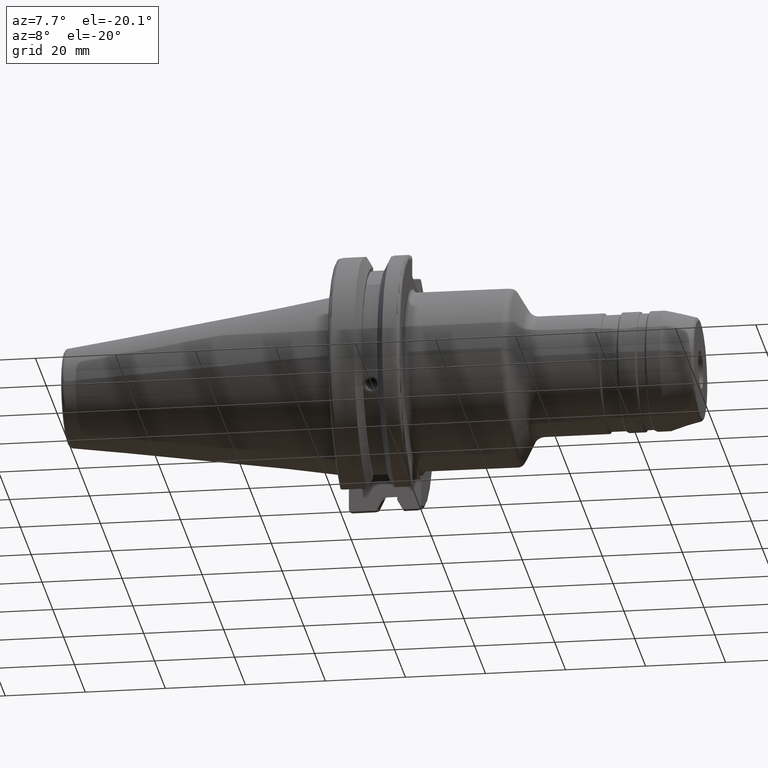
[diagram: clean part render]
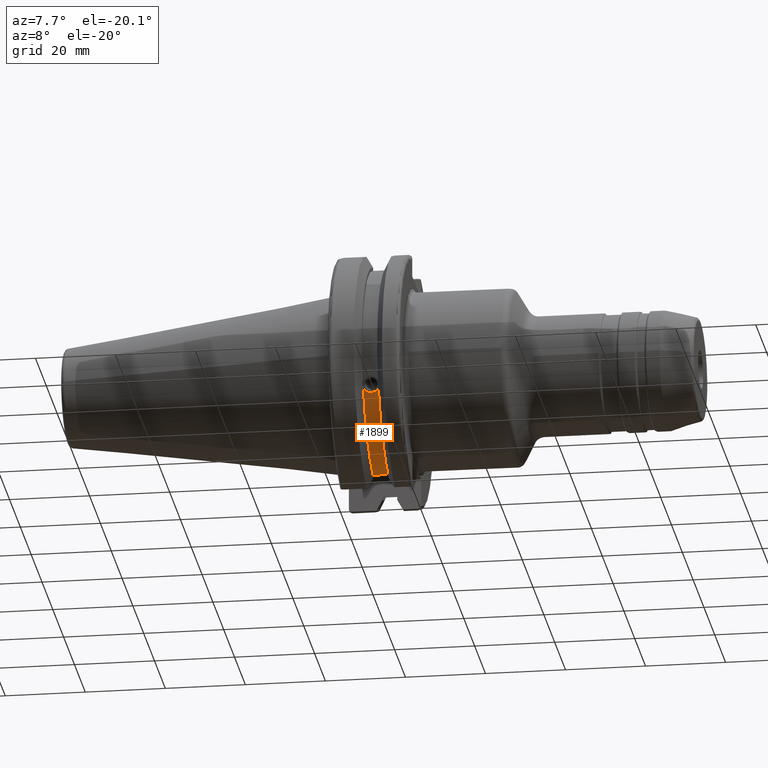
[diagram: same view with one face highlighted and labeled with its STEP entity id]
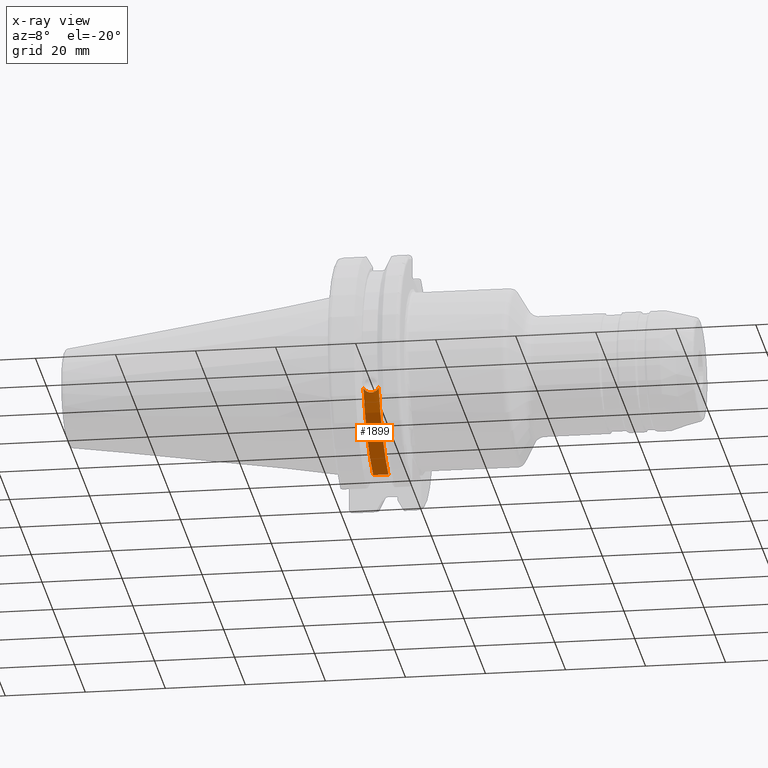
[diagram: x-ray of the same camera — body ghosted, the highlighted face saturated]
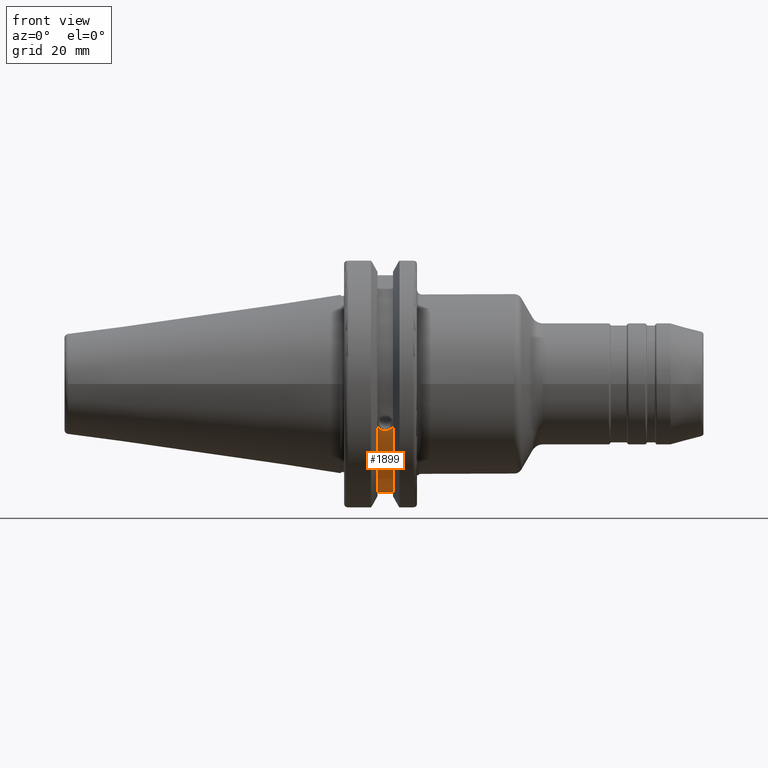
[diagram: same view with one face highlighted and labeled with its STEP entity id]
A machine part, auxiliary view. The second image highlights one B-rep face of the part: STEP entity #1899.
The next image is the same camera in x-ray: the body ghosted, the highlighted face saturated — about 0% of this face is hidden behind the body in this view.
A second angle (front view) of the same face is appended — the face is thin or edge-on in the first view.
In plain terms, the highlighted cylindrical surface (partial cylindrical patch) has radius 28.15 mm, axis along (1, 0, 0).
Its self-contained STEP definition (entity closure, byte-faithful):
#61=B_SPLINE_CURVE_WITH_KNOTS('',3,(#3229,#3230,#3231,#3232,#3233,#3234,
#3235,#3236,#3237,#3238,#3239,#3240,#3241,#3242,#3243),.UNSPECIFIED.,.F.,
 .F.,(4,2,2,3,2,2,4),(-0.231446873660084,-0.158271583089134,-0.079135791544567,
0.,0.0791357915445671,0.158271583089134,0.231446873660466),
 .UNSPECIFIED.);
#102=CYLINDRICAL_SURFACE('',#2123,28.15);
#199=LINE('',#3302,#294);
#294=VECTOR('',#2557,10.);
#425=FACE_OUTER_BOUND('',#540,.T.);
#540=EDGE_LOOP('',(#1495,#1496,#1497,#1498));
#693=CIRCLE('',#2122,28.15);
#694=CIRCLE('',#2124,28.15);
#825=VERTEX_POINT('',#3226);
#826=VERTEX_POINT('',#3228);
#839=VERTEX_POINT('',#3296);
#840=VERTEX_POINT('',#3300);
#1059=EDGE_CURVE('',#826,#825,#61,.T.);
#1077=EDGE_CURVE('',#826,#839,#693,.T.);
#1079=EDGE_CURVE('',#825,#840,#694,.T.);
#1080=EDGE_CURVE('',#840,#839,#199,.T.);
#1495=ORIENTED_EDGE('',*,*,#1059,.T.);
#1496=ORIENTED_EDGE('',*,*,#1079,.T.);
#1497=ORIENTED_EDGE('',*,*,#1080,.T.);
#1498=ORIENTED_EDGE('',*,*,#1077,.F.);
#1899=ADVANCED_FACE('',(#425),#102,.T.);
#2122=AXIS2_PLACEMENT_3D('',#3297,#2550,#2551);
#2123=AXIS2_PLACEMENT_3D('',#3299,#2553,#2554);
#2124=AXIS2_PLACEMENT_3D('',#3301,#2555,#2556);
#2550=DIRECTION('center_axis',(1.,0.,0.));
#2551=DIRECTION('ref_axis',(0.,0.,-1.));
#2553=DIRECTION('center_axis',(1.,0.,0.));
#2554=DIRECTION('ref_axis',(0.,1.,0.));
#2555=DIRECTION('center_axis',(1.,0.,0.));
#2556=DIRECTION('ref_axis',(0.,0.,-1.));
#2557=DIRECTION('',(1.,0.,0.));
#3226=CARTESIAN_POINT('',(9.261,-26.1451788594704,-10.4332220529567));
#3228=CARTESIAN_POINT('',(13.091,-26.1451788594704,-10.4332220529567));
#3229=CARTESIAN_POINT('Ctrl Pts',(13.091,-26.1451788594704,-10.4332220529567));
#3230=CARTESIAN_POINT('Ctrl Pts',(12.9847694290343,-26.0576536126147,-10.6525563316815));
#3231=CARTESIAN_POINT('Ctrl Pts',(12.833279862294,-25.9751489313128,-10.8509873904882));
#3232=CARTESIAN_POINT('Ctrl Pts',(12.4745293734259,-25.8346412777187,-11.1816210830117));
#3233=CARTESIAN_POINT('Ctrl Pts',(12.2384549887012,-25.7695111693635,-11.3298867884858));
#3234=CARTESIAN_POINT('Ctrl Pts',(11.7210874573612,-25.6822868299377,-11.5262389251846));
#3235=CARTESIAN_POINT('Ctrl Pts',(11.4397859718152,-25.6603958057616,-11.5743935949859));
#3236=CARTESIAN_POINT('Ctrl Pts',(11.176,-25.6603958057616,-11.5743935949859));
#3237=CARTESIAN_POINT('Ctrl Pts',(10.9122140281848,-25.6603958057616,-11.5743935949859));
#3238=CARTESIAN_POINT('Ctrl Pts',(10.6309125426388,-25.6822868299377,-11.5262389251846));
#3239=CARTESIAN_POINT('Ctrl Pts',(10.1135450112988,-25.7695111693635,-11.3298867884858));
#3240=CARTESIAN_POINT('Ctrl Pts',(9.87747062657411,-25.8346412777187,-11.1816210830117));
#3241=CARTESIAN_POINT('Ctrl Pts',(9.5187201377051,-25.9751489313131,-10.8509873904873));
#3242=CARTESIAN_POINT('Ctrl Pts',(9.36723057097183,-26.0576536126096,-10.6525563316942));
#3243=CARTESIAN_POINT('Ctrl Pts',(9.261,-26.1451788594704,-10.4332220529567));
#3296=CARTESIAN_POINT('',(13.091,-8.19,-26.932255754021));
#3297=CARTESIAN_POINT('Origin',(13.091,0.,0.));
#3299=CARTESIAN_POINT('Origin',(11.176,0.,0.));
#3300=CARTESIAN_POINT('',(9.261,-8.19,-26.932255754021));
#3301=CARTESIAN_POINT('Origin',(9.261,0.,0.));
#3302=CARTESIAN_POINT('',(11.176,-8.19,-26.932255754021));